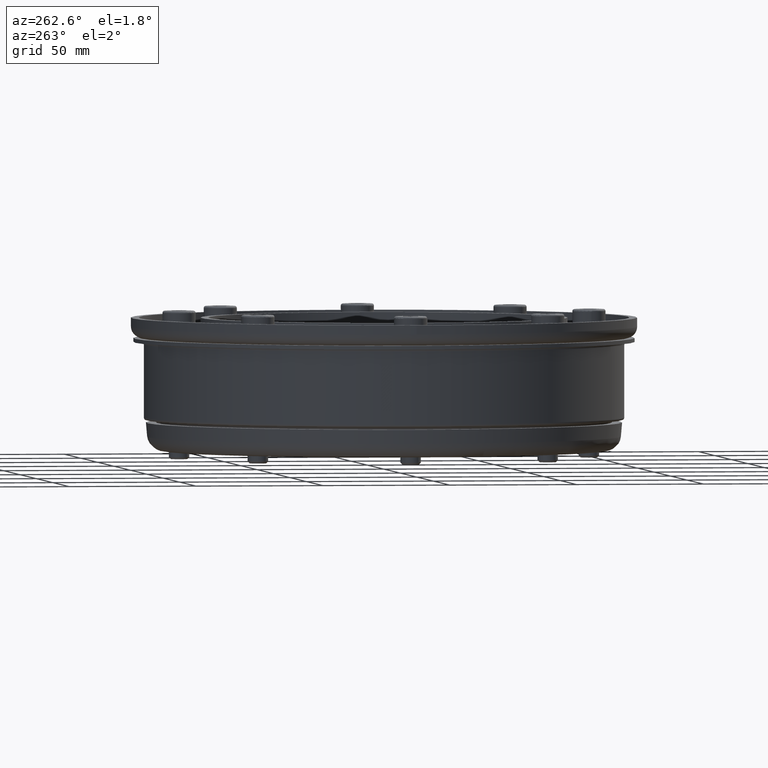
[diagram: clean part render]
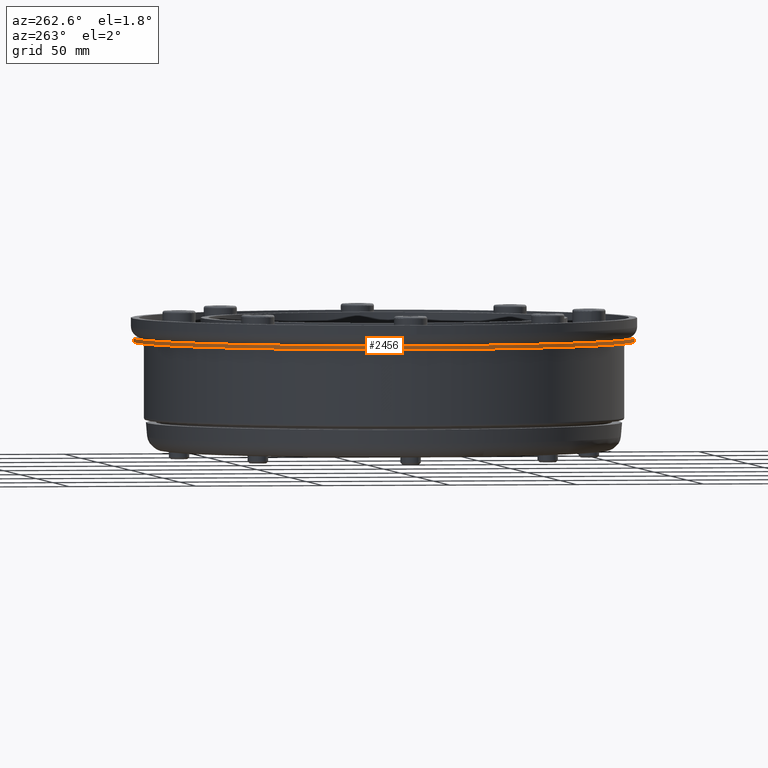
[diagram: same view with one face highlighted and labeled with its STEP entity id]
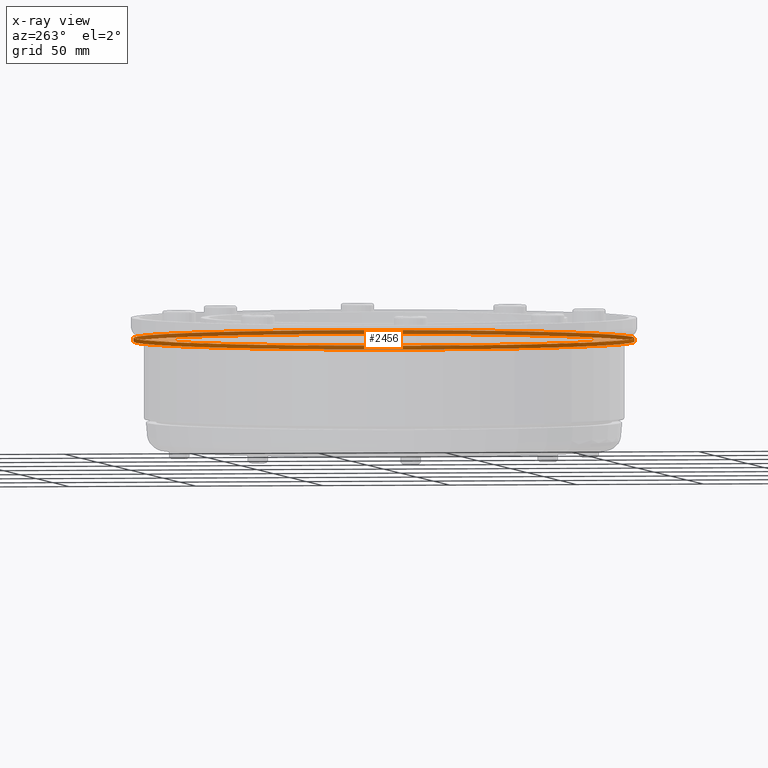
[diagram: x-ray of the same camera — body ghosted, the highlighted face saturated]
A machine part, auxiliary view. The second image highlights one B-rep face of the part: STEP entity #2456.
The next image is the same camera in x-ray: the body ghosted, the highlighted face saturated — about 49% of this face is hidden behind the body in this view.
In plain terms, the highlighted cylindrical surface (bore or boss wall) has radius 98 mm, axis along (-0, 0, 1).
Its self-contained STEP definition (entity closure, byte-faithful):
#235=CYLINDRICAL_SURFACE('',#2835,98.);
#336=FACE_OUTER_BOUND('',#493,.T.);
#493=EDGE_LOOP('',(#1990,#1991,#1992,#1993));
#661=LINE('',#4292,#760);
#760=VECTOR('',#3474,97.8);
#930=CIRCLE('',#2795,98.);
#942=CIRCLE('',#2810,98.);
#1174=VERTEX_POINT('',#4224);
#1184=VERTEX_POINT('',#4249);
#1461=EDGE_CURVE('',#1174,#1174,#930,.T.);
#1473=EDGE_CURVE('',#1184,#1184,#942,.T.);
#1490=EDGE_CURVE('',#1174,#1184,#661,.T.);
#1990=ORIENTED_EDGE('',*,*,#1461,.F.);
#1991=ORIENTED_EDGE('',*,*,#1490,.T.);
#1992=ORIENTED_EDGE('',*,*,#1473,.T.);
#1993=ORIENTED_EDGE('',*,*,#1490,.F.);
#2456=ADVANCED_FACE('',(#336),#235,.T.);
#2795=AXIS2_PLACEMENT_3D('',#4225,#3384,#3385);
#2810=AXIS2_PLACEMENT_3D('',#4250,#3414,#3415);
#2835=AXIS2_PLACEMENT_3D('',#4291,#3472,#3473);
#3384=DIRECTION('center_axis',(0.,0.,1.));
#3385=DIRECTION('ref_axis',(0.,-1.,-1.83697019872103E-16));
#3414=DIRECTION('center_axis',(0.,-1.83697019872103E-16,1.));
#3415=DIRECTION('ref_axis',(0.,-1.,-1.83697019872103E-16));
#3472=DIRECTION('center_axis',(0.,-1.83697019872103E-16,1.));
#3473=DIRECTION('ref_axis',(0.,-1.,-1.83697019872103E-16));
#3474=DIRECTION('',(0.,1.83697019872103E-16,-1.));
#4224=CARTESIAN_POINT('',(-1.20015386316441E-14,98.,40.));
#4225=CARTESIAN_POINT('Origin',(0.,-7.34788079488412E-15,40.));
#4249=CARTESIAN_POINT('',(-1.20015386316441E-14,98.,38.5));
#4250=CARTESIAN_POINT('Origin',(0.,-7.07233526507597E-15,38.5));
#4291=CARTESIAN_POINT('Origin',(0.,-7.21010802998004E-15,39.25));
#4292=CARTESIAN_POINT('',(-1.20015386316441E-14,98.,39.25));